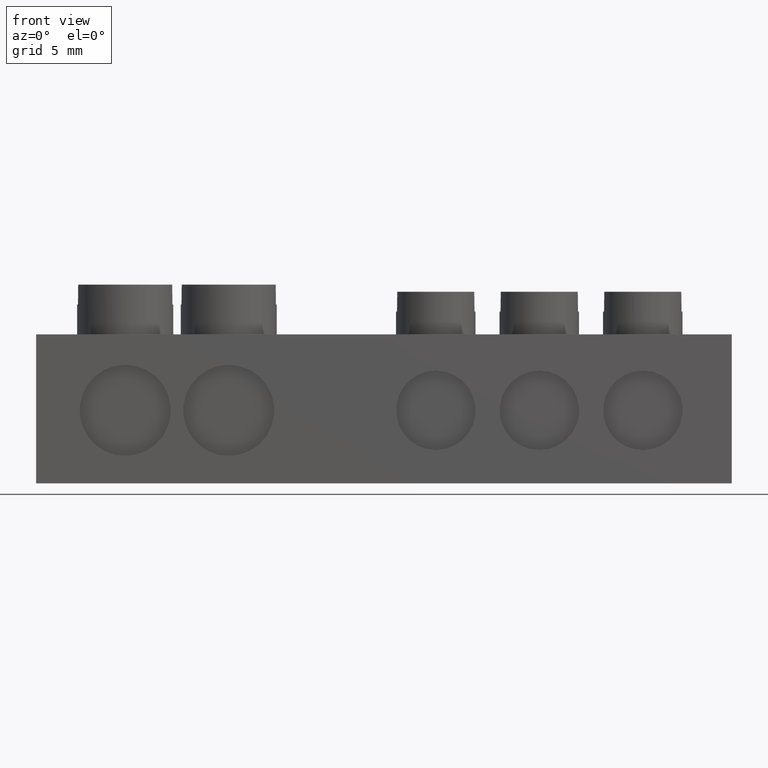
[diagram: clean part render]
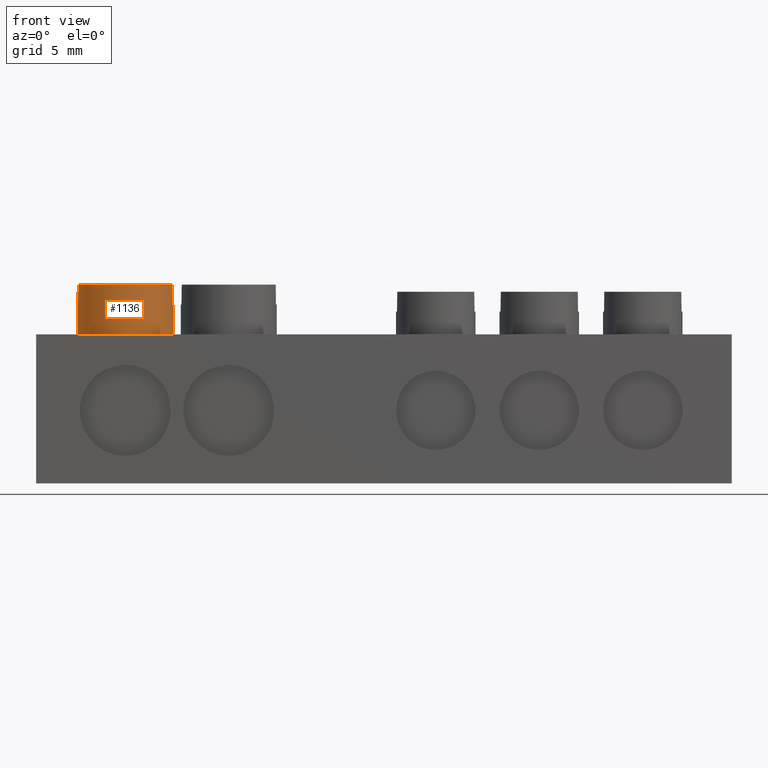
[diagram: same view with one face highlighted and labeled with its STEP entity id]
A machine part, front view. The second image highlights one B-rep face of the part: STEP entity #1136.
In plain terms, the highlighted cylindrical surface (partial cylindrical patch) has radius 2.9 mm, axis along (0, -0, 1).
Its self-contained STEP definition (entity closure, byte-faithful):
#17 =( BOUNDED_CURVE ( )  B_SPLINE_CURVE ( 3, ( #656, #657, #636, #649 ),
 .UNSPECIFIED., .F., .T. ) 
 B_SPLINE_CURVE_WITH_KNOTS ( ( 4, 4 ),
 ( 4.898675119793459500, 4.920790786976438900 ),
 .UNSPECIFIED. ) 
 CURVE ( )  GEOMETRIC_REPRESENTATION_ITEM ( )  RATIONAL_B_SPLINE_CURVE ( ( 1.000000000000000000, 0.9999592418540675900, 0.9999592418540675900, 1.000000000000000000 ) ) 
 REPRESENTATION_ITEM ( '' )  );
#21 =( BOUNDED_CURVE ( )  B_SPLINE_CURVE ( 3, ( #1904, #1924, #1890, #1927 ),
 .UNSPECIFIED., .F., .T. ) 
 B_SPLINE_CURVE_WITH_KNOTS ( ( 4, 4 ),
 ( 1.362394520203147300, 1.384510187386126300 ),
 .UNSPECIFIED. ) 
 CURVE ( )  GEOMETRIC_REPRESENTATION_ITEM ( )  RATIONAL_B_SPLINE_CURVE ( ( 1.000000000000000000, 0.9999592418540675900, 0.9999592418540675900, 1.000000000000000000 ) ) 
 REPRESENTATION_ITEM ( '' )  );
#38 = LINE ( 'NONE', #71, #1525 ) ;
#56 = DIRECTION ( 'NONE',  ( 6.938880860708999700E-018, -9.513422018790940400E-021, 1.000000000000000000 ) ) ;
#71 = CARTESIAN_POINT ( 'NONE',  ( 8.175000000000000700, 3.250000000000000900, 9.000000000000003600 ) ) ;
#91 = DIRECTION ( 'NONE',  ( 1.000000000000000000, 0.0000000000000000000, 0.0000000000000000000 ) ) ;
#110 = DIRECTION ( 'NONE',  ( 6.938880860708999700E-018, -9.513422018790940400E-021, 1.000000000000000000 ) ) ;
#116 = CARTESIAN_POINT ( 'NONE',  ( 5.275000000000000400, 3.250000000000000900, 9.000000000000003600 ) ) ;
#123 = CYLINDRICAL_SURFACE ( 'NONE', #1532, 2.899999999999999900 ) ;
#132 = FACE_OUTER_BOUND ( 'NONE', #911, .T. ) ;
#279 = LINE ( 'NONE', #301, #1652 ) ;
#301 = CARTESIAN_POINT ( 'NONE',  ( 2.375000000000000400, 3.250000000000001300, 9.000000000000003600 ) ) ;
#308 = DIRECTION ( 'NONE',  ( 6.938880860708999700E-018, -9.513422018790940400E-021, 1.000000000000000000 ) ) ;
#636 = CARTESIAN_POINT ( 'NONE',  ( 8.115878803603772300, 2.667020856979263900, 11.60089255937234600 ) ) ;
#641 = CARTESIAN_POINT ( 'NONE',  ( 5.275000000000000400, 3.250000000000000900, 10.80000000000000100 ) ) ;
#643 = DIRECTION ( 'NONE',  ( -6.938880860708999700E-018, 9.513422018790940400E-021, -1.000000000000000000 ) ) ;
#649 = CARTESIAN_POINT ( 'NONE',  ( 8.111426907261680700, 2.646110606350844800, 12.00000000000000000 ) ) ;
#653 = DIRECTION ( 'NONE',  ( 1.000000000000000000, 0.0000000000000000000, 0.0000000000000000000 ) ) ;
#656 = CARTESIAN_POINT ( 'NONE',  ( 8.124087611631317400, 2.708982642377380800, 10.80000000000000100 ) ) ;
#657 = CARTESIAN_POINT ( 'NONE',  ( 8.120099210409607700, 2.687979056538799300, 11.20087625544944700 ) ) ;
#719 = DIRECTION ( 'NONE',  ( -6.938880860708999700E-018, 9.513422018790940400E-021, -1.000000000000000000 ) ) ;
#724 = DIRECTION ( 'NONE',  ( 1.000000000000000000, 0.0000000000000000000, 0.0000000000000000000 ) ) ;
#725 = CARTESIAN_POINT ( 'NONE',  ( 5.275000000000000400, 3.250000000000000900, 10.80000000000000100 ) ) ;
#911 = EDGE_LOOP ( 'NONE', ( #2797, #2751, #2737, #2741, #2704, #2676, #2781, #2814 ) ) ;
#1129 = EDGE_CURVE ( 'NONE', #2812, #2813, #38, .T. ) ;
#1136 = ADVANCED_FACE ( 'NONE', ( #132 ), #123, .T. ) ;
#1195 = EDGE_CURVE ( 'NONE', #2903, #2917, #279, .T. ) ;
#1302 = EDGE_CURVE ( 'NONE', #2813, #2934, #1784, .T. ) ;
#1304 = EDGE_CURVE ( 'NONE', #2934, #2988, #17, .T. ) ;
#1336 = EDGE_CURVE ( 'NONE', #2930, #2917, #1850, .T. ) ;
#1376 = EDGE_CURVE ( 'NONE', #2903, #2812, #1880, .T. ) ;
#1393 = EDGE_CURVE ( 'NONE', #2988, #2941, #1996, .T. ) ;
#1399 = EDGE_CURVE ( 'NONE', #2941, #2930, #21, .T. ) ;
#1525 = VECTOR ( 'NONE', #56, 1000.000000000000000 ) ;
#1532 = AXIS2_PLACEMENT_3D ( 'NONE', #116, #110, #91 ) ;
#1652 = VECTOR ( 'NONE', #308, 1000.000000000000000 ) ;
#1745 = AXIS2_PLACEMENT_3D ( 'NONE', #725, #719, #724 ) ;
#1784 = CIRCLE ( 'NONE', #1796, 2.899999999999999900 ) ;
#1793 = CARTESIAN_POINT ( 'NONE',  ( 5.275000000000000400, 3.250000000000000900, 9.000000000000003600 ) ) ;
#1795 = DIRECTION ( 'NONE',  ( 1.000000000000000000, 0.0000000000000000000, 0.0000000000000000000 ) ) ;
#1796 = AXIS2_PLACEMENT_3D ( 'NONE', #641, #643, #653 ) ;
#1799 = DIRECTION ( 'NONE',  ( 6.938880860708999700E-018, -9.513422018790940400E-021, 1.000000000000000000 ) ) ;
#1850 = CIRCLE ( 'NONE', #1745, 2.899999999999999900 ) ;
#1869 = CARTESIAN_POINT ( 'NONE',  ( 5.275000000000000400, 3.250000000000000900, 12.00000000000000000 ) ) ;
#1879 = DIRECTION ( 'NONE',  ( -6.938880860708999700E-018, 9.513422018790940400E-021, -1.000000000000000000 ) ) ;
#1880 = CIRCLE ( 'NONE', #1905, 2.899999999999999900 ) ;
#1890 = CARTESIAN_POINT ( 'NONE',  ( 2.428370392008556900, 2.695782594220582900, 11.20087625544947600 ) ) ;
#1898 = DIRECTION ( 'NONE',  ( 1.000000000000000000, 0.0000000000000000000, 0.0000000000000000000 ) ) ;
#1904 = CARTESIAN_POINT ( 'NONE',  ( 2.436927856867846300, 2.653890521483455200, 12.00000000000000000 ) ) ;
#1905 = AXIS2_PLACEMENT_3D ( 'NONE', #1793, #1799, #1795 ) ;
#1924 = CARTESIAN_POINT ( 'NONE',  ( 2.432533314365853600, 2.674812900855368700, 11.60089255937236500 ) ) ;
#1927 = CARTESIAN_POINT ( 'NONE',  ( 2.424439598814946100, 2.716797037521634800, 10.80000000000000100 ) ) ;
#1976 = AXIS2_PLACEMENT_3D ( 'NONE', #1869, #1879, #1898 ) ;
#1996 = CIRCLE ( 'NONE', #1976, 2.899999999999999900 ) ;
#2078 = CARTESIAN_POINT ( 'NONE',  ( 8.175000000000000700, 3.250000000000000900, 10.80000000000000100 ) ) ;
#2079 = CARTESIAN_POINT ( 'NONE',  ( 8.175000000000000700, 3.250000000000000900, 9.000000000000003600 ) ) ;
#2094 = CARTESIAN_POINT ( 'NONE',  ( 2.375000000000000400, 3.250000000000001300, 9.000000000000003600 ) ) ;
#2124 = CARTESIAN_POINT ( 'NONE',  ( 8.124087611631317400, 2.708982642377380800, 10.80000000000000100 ) ) ;
#2144 = CARTESIAN_POINT ( 'NONE',  ( 2.375000000000000400, 3.250000000000001300, 10.80000000000000100 ) ) ;
#2146 = CARTESIAN_POINT ( 'NONE',  ( 2.424439598814946100, 2.716797037521634800, 10.80000000000000100 ) ) ;
#2166 = CARTESIAN_POINT ( 'NONE',  ( 8.111426907261680700, 2.646110606350844800, 12.00000000000000000 ) ) ;
#2218 = CARTESIAN_POINT ( 'NONE',  ( 2.436927856867846300, 2.653890521483455200, 12.00000000000000000 ) ) ;
#2676 = ORIENTED_EDGE ( 'NONE', *, *, #1393, .T. ) ;
#2704 = ORIENTED_EDGE ( 'NONE', *, *, #1304, .T. ) ;
#2737 = ORIENTED_EDGE ( 'NONE', *, *, #1129, .T. ) ;
#2741 = ORIENTED_EDGE ( 'NONE', *, *, #1302, .T. ) ;
#2751 = ORIENTED_EDGE ( 'NONE', *, *, #1376, .T. ) ;
#2781 = ORIENTED_EDGE ( 'NONE', *, *, #1399, .T. ) ;
#2797 = ORIENTED_EDGE ( 'NONE', *, *, #1195, .F. ) ;
#2812 = VERTEX_POINT ( 'NONE', #2079 ) ;
#2813 = VERTEX_POINT ( 'NONE', #2078 ) ;
#2814 = ORIENTED_EDGE ( 'NONE', *, *, #1336, .T. ) ;
#2903 = VERTEX_POINT ( 'NONE', #2094 ) ;
#2917 = VERTEX_POINT ( 'NONE', #2144 ) ;
#2930 = VERTEX_POINT ( 'NONE', #2146 ) ;
#2934 = VERTEX_POINT ( 'NONE', #2124 ) ;
#2941 = VERTEX_POINT ( 'NONE', #2218 ) ;
#2988 = VERTEX_POINT ( 'NONE', #2166 ) ;